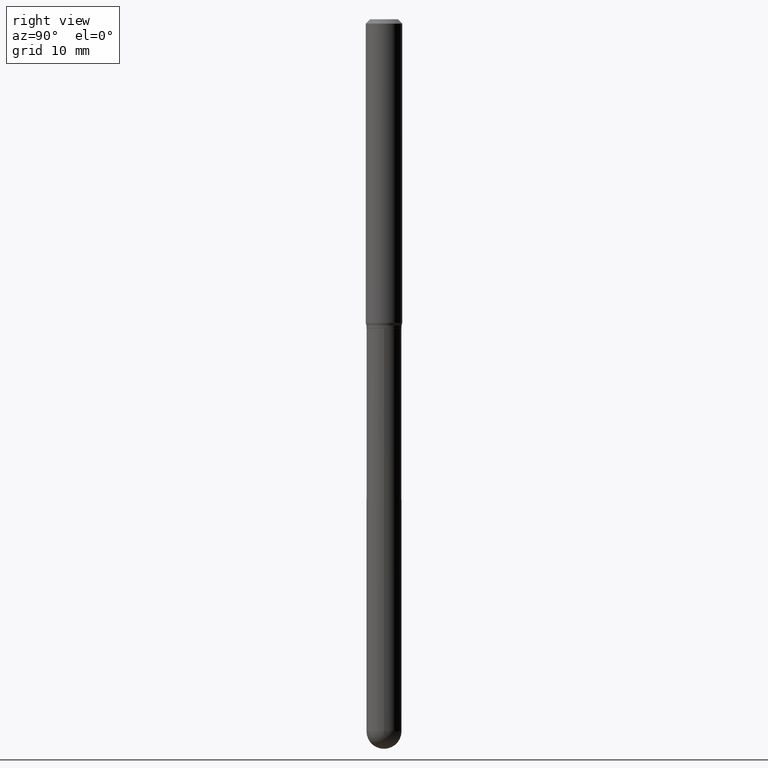
[diagram: clean part render]
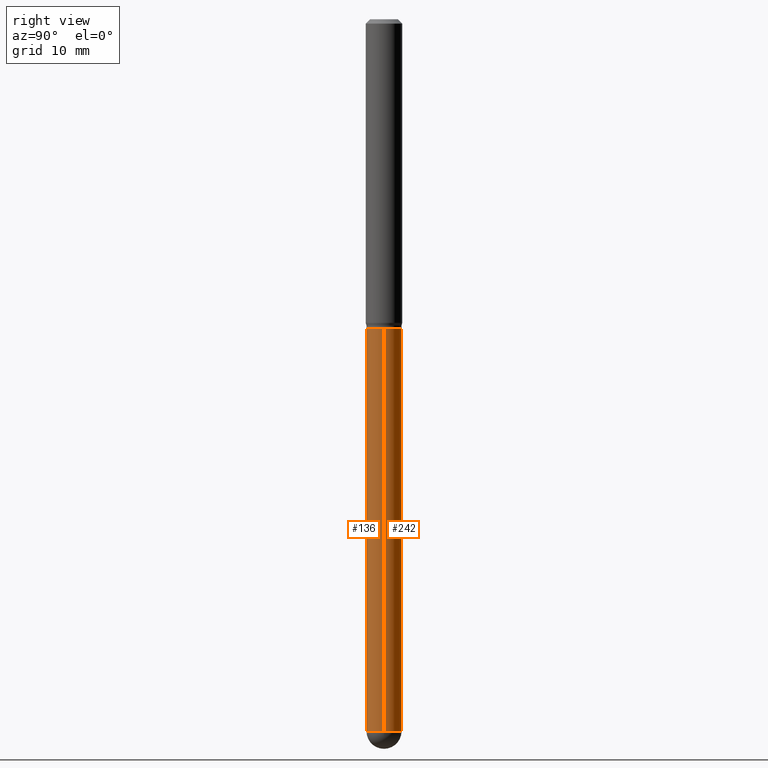
[diagram: same view with one multi-face feature highlighted, each face labeled with its STEP entity id]
A machine part, right view. The highlighted faces form ONE feature: a constant-radius fillet chain: 2 tangent blend faces with common blend radius 1.524 mm. The faces share edges in the B-rep.
Their STEP definitions:
[1] entity #242 (Cylinder):
#2 = VERTEX_POINT ( 'NONE', #322 ) ;
#9 = VERTEX_POINT ( 'NONE', #56 ) ;
#10 = AXIS2_PLACEMENT_3D ( 'NONE', #409, #247, #210 ) ;
#15 = EDGE_CURVE ( 'NONE', #367, #2, #197, .T. ) ;
#21 = CARTESIAN_POINT ( 'NONE',  ( -0.06000000000000001166, 4.263256414560601944E-16, -2.951361054152943763E-30 ) ) ;
#25 = CARTESIAN_POINT ( 'NONE',  ( 0.000000000000000000, 0.000000000000000000, 0.000000000000000000 ) ) ;
#31 = DIRECTION ( 'NONE',  ( 1.000000000000000000, -6.982962677686266711E-15, 0.000000000000000000 ) ) ;
#41 = EDGE_LOOP ( 'NONE', ( #43, #237, #121, #147, #479 ) ) ;
#43 = ORIENTED_EDGE ( 'NONE', *, *, #181, .T. ) ;
#45 = VERTEX_POINT ( 'NONE', #502 ) ;
#56 = CARTESIAN_POINT ( 'NONE',  ( -0.06000000000000001166, -5.683766701519444970E-15, -2.440000000000000391 ) ) ;
#64 = VECTOR ( 'NONE', #102, 39.37007874015748143 ) ;
#65 = DIRECTION ( 'NONE',  ( 1.000000000000000000, -6.982962677686266711E-15, 4.876176775795935793E-29 ) ) ;
#66 = DIRECTION ( 'NONE',  ( -2.445468806185136877E-29, 3.491481338843145188E-15, 1.000000000000000000 ) ) ;
#67 = LINE ( 'NONE', #140, #64 ) ;
#72 = CARTESIAN_POINT ( 'NONE',  ( 0.05999999999999999778, -4.119947979834910928E-15, -1.060000000000000275 ) ) ;
#95 = EDGE_CURVE ( 'NONE', #9, #2, #496, .T. ) ;
#98 = DIRECTION ( 'NONE',  ( 1.000000000000000000, -6.982962677686268288E-15, 0.000000000000000000 ) ) ;
#102 = DIRECTION ( 'NONE',  ( -2.445468806185136877E-29, 3.491481338843145188E-15, 1.000000000000000000 ) ) ;
#121 = ORIENTED_EDGE ( 'NONE', *, *, #15, .F. ) ;
#140 = CARTESIAN_POINT ( 'NONE',  ( 0.06000000000000001166, -4.189777606611760914E-16, 2.925706065477562106E-30 ) ) ;
#141 = DIRECTION ( 'NONE',  ( -2.445468806185136597E-29, 3.491481338843145583E-15, 1.000000000000000000 ) ) ;
#147 = ORIENTED_EDGE ( 'NONE', *, *, #293, .F. ) ;
#160 = VERTEX_POINT ( 'NONE', #333 ) ;
#181 = EDGE_CURVE ( 'NONE', #45, #9, #216, .T. ) ;
#197 = CIRCLE ( 'NONE', #356, 0.05999999999999999778 ) ;
#210 = DIRECTION ( 'NONE',  ( 1.000000000000000000, -6.982962677686266711E-15, 0.000000000000000000 ) ) ;
#213 = EDGE_CURVE ( 'NONE', #160, #45, #500, .T. ) ;
#214 = FACE_OUTER_BOUND ( 'NONE', #41, .T. ) ;
#216 = CIRCLE ( 'NONE', #345, 0.06000000000000001166 ) ;
#225 = DIRECTION ( 'NONE',  ( -2.445468806185136597E-29, 3.491481338843145583E-15, 1.000000000000000000 ) ) ;
#234 = AXIS2_PLACEMENT_3D ( 'NONE', #25, #225, #65 ) ;
#237 = ORIENTED_EDGE ( 'NONE', *, *, #95, .T. ) ;
#242 = ADVANCED_FACE ( 'NONE', ( #214 ), #375, .T. ) ;
#247 = DIRECTION ( 'NONE',  ( -2.445468806185136597E-29, 3.491481338843145583E-15, 1.000000000000000000 ) ) ;
#293 = EDGE_CURVE ( 'NONE', #160, #367, #67, .T. ) ;
#322 = CARTESIAN_POINT ( 'NONE',  ( -0.05999999999999999778, -5.683766701519444970E-15, -1.060000000000000275 ) ) ;
#333 = CARTESIAN_POINT ( 'NONE',  ( 0.06000000000000001166, -6.529070103636681305E-15, -2.440000000000000391 ) ) ;
#345 = AXIS2_PLACEMENT_3D ( 'NONE', #491, #141, #31 ) ;
#356 = AXIS2_PLACEMENT_3D ( 'NONE', #487, #374, #98 ) ;
#367 = VERTEX_POINT ( 'NONE', #72 ) ;
#374 = DIRECTION ( 'NONE',  ( -2.445468806185136597E-29, 3.491481338843145583E-15, 1.000000000000000000 ) ) ;
#375 = CYLINDRICAL_SURFACE ( 'NONE', #234, 0.06000000000000001166 ) ;
#408 = VECTOR ( 'NONE', #66, 39.37007874015748143 ) ;
#409 = CARTESIAN_POINT ( 'NONE',  ( 5.966943887091733341E-29, -8.519214466777275048E-15, -2.440000000000000391 ) ) ;
#479 = ORIENTED_EDGE ( 'NONE', *, *, #213, .T. ) ;
#487 = CARTESIAN_POINT ( 'NONE',  ( 2.592196934556245308E-29, -3.700970219173735083E-15, -1.060000000000000275 ) ) ;
#491 = CARTESIAN_POINT ( 'NONE',  ( 5.966943887091733341E-29, -8.519214466777275048E-15, -2.440000000000000391 ) ) ;
#496 = LINE ( 'NONE', #21, #408 ) ;
#500 = CIRCLE ( 'NONE', #10, 0.06000000000000001166 ) ;
#502 = CARTESIAN_POINT ( 'NONE',  ( 4.189777606612355518E-16, 0.05999999999999145600, -2.440000000000000391 ) ) ;
[2] entity #136 (Cylinder):
#2 = VERTEX_POINT ( 'NONE', #322 ) ;
#9 = VERTEX_POINT ( 'NONE', #56 ) ;
#21 = CARTESIAN_POINT ( 'NONE',  ( -0.06000000000000001166, 4.263256414560601944E-16, -2.951361054152943763E-30 ) ) ;
#23 = DIRECTION ( 'NONE',  ( 1.000000000000000000, -6.982962677686266711E-15, 4.876176775795935793E-29 ) ) ;
#35 = EDGE_CURVE ( 'NONE', #212, #160, #457, .T. ) ;
#36 = CIRCLE ( 'NONE', #165, 0.06000000000000001166 ) ;
#56 = CARTESIAN_POINT ( 'NONE',  ( -0.06000000000000001166, -5.683766701519444970E-15, -2.440000000000000391 ) ) ;
#57 = ORIENTED_EDGE ( 'NONE', *, *, #293, .T. ) ;
#64 = VECTOR ( 'NONE', #102, 39.37007874015748143 ) ;
#66 = DIRECTION ( 'NONE',  ( -2.445468806185136877E-29, 3.491481338843145188E-15, 1.000000000000000000 ) ) ;
#67 = LINE ( 'NONE', #140, #64 ) ;
#72 = CARTESIAN_POINT ( 'NONE',  ( 0.05999999999999999778, -4.119947979834910928E-15, -1.060000000000000275 ) ) ;
#80 = DIRECTION ( 'NONE',  ( -2.445468806185136597E-29, 3.491481338843145583E-15, 1.000000000000000000 ) ) ;
#87 = ORIENTED_EDGE ( 'NONE', *, *, #35, .T. ) ;
#95 = EDGE_CURVE ( 'NONE', #9, #2, #496, .T. ) ;
#97 = DIRECTION ( 'NONE',  ( -2.445468806185136597E-29, 3.491481338843145583E-15, 1.000000000000000000 ) ) ;
#99 = DIRECTION ( 'NONE',  ( -2.445468806185136597E-29, 3.491481338843145583E-15, 1.000000000000000000 ) ) ;
#102 = DIRECTION ( 'NONE',  ( -2.445468806185136877E-29, 3.491481338843145188E-15, 1.000000000000000000 ) ) ;
#119 = EDGE_CURVE ( 'NONE', #9, #212, #36, .T. ) ;
#136 = ADVANCED_FACE ( 'NONE', ( #427 ), #219, .T. ) ;
#140 = CARTESIAN_POINT ( 'NONE',  ( 0.06000000000000001166, -4.189777606611760914E-16, 2.925706065477562106E-30 ) ) ;
#160 = VERTEX_POINT ( 'NONE', #333 ) ;
#165 = AXIS2_PLACEMENT_3D ( 'NONE', #415, #99, #287 ) ;
#171 = CARTESIAN_POINT ( 'NONE',  ( -4.263256414560002409E-16, -0.06000000000000851180, -2.439999999999999947 ) ) ;
#183 = AXIS2_PLACEMENT_3D ( 'NONE', #497, #97, #23 ) ;
#195 = EDGE_LOOP ( 'NONE', ( #233, #357, #87, #57, #291 ) ) ;
#212 = VERTEX_POINT ( 'NONE', #171 ) ;
#217 = CIRCLE ( 'NONE', #255, 0.05999999999999999778 ) ;
#219 = CYLINDRICAL_SURFACE ( 'NONE', #183, 0.06000000000000001166 ) ;
#229 = CARTESIAN_POINT ( 'NONE',  ( 2.592196934556245308E-29, -3.700970219173735083E-15, -1.060000000000000275 ) ) ;
#233 = ORIENTED_EDGE ( 'NONE', *, *, #95, .F. ) ;
#253 = AXIS2_PLACEMENT_3D ( 'NONE', #379, #419, #294 ) ;
#255 = AXIS2_PLACEMENT_3D ( 'NONE', #229, #80, #272 ) ;
#272 = DIRECTION ( 'NONE',  ( 1.000000000000000000, -6.982962677686268288E-15, 0.000000000000000000 ) ) ;
#287 = DIRECTION ( 'NONE',  ( 1.000000000000000000, -6.982962677686266711E-15, 0.000000000000000000 ) ) ;
#291 = ORIENTED_EDGE ( 'NONE', *, *, #511, .F. ) ;
#293 = EDGE_CURVE ( 'NONE', #160, #367, #67, .T. ) ;
#294 = DIRECTION ( 'NONE',  ( 1.000000000000000000, -6.982962677686266711E-15, 0.000000000000000000 ) ) ;
#322 = CARTESIAN_POINT ( 'NONE',  ( -0.05999999999999999778, -5.683766701519444970E-15, -1.060000000000000275 ) ) ;
#333 = CARTESIAN_POINT ( 'NONE',  ( 0.06000000000000001166, -6.529070103636681305E-15, -2.440000000000000391 ) ) ;
#357 = ORIENTED_EDGE ( 'NONE', *, *, #119, .T. ) ;
#367 = VERTEX_POINT ( 'NONE', #72 ) ;
#379 = CARTESIAN_POINT ( 'NONE',  ( 5.966943887091733341E-29, -8.519214466777275048E-15, -2.440000000000000391 ) ) ;
#408 = VECTOR ( 'NONE', #66, 39.37007874015748143 ) ;
#415 = CARTESIAN_POINT ( 'NONE',  ( 5.966943887091733341E-29, -8.519214466777275048E-15, -2.440000000000000391 ) ) ;
#419 = DIRECTION ( 'NONE',  ( -2.445468806185136597E-29, 3.491481338843145583E-15, 1.000000000000000000 ) ) ;
#427 = FACE_OUTER_BOUND ( 'NONE', #195, .T. ) ;
#457 = CIRCLE ( 'NONE', #253, 0.06000000000000001166 ) ;
#496 = LINE ( 'NONE', #21, #408 ) ;
#497 = CARTESIAN_POINT ( 'NONE',  ( 0.000000000000000000, 0.000000000000000000, 0.000000000000000000 ) ) ;
#511 = EDGE_CURVE ( 'NONE', #2, #367, #217, .T. ) ;